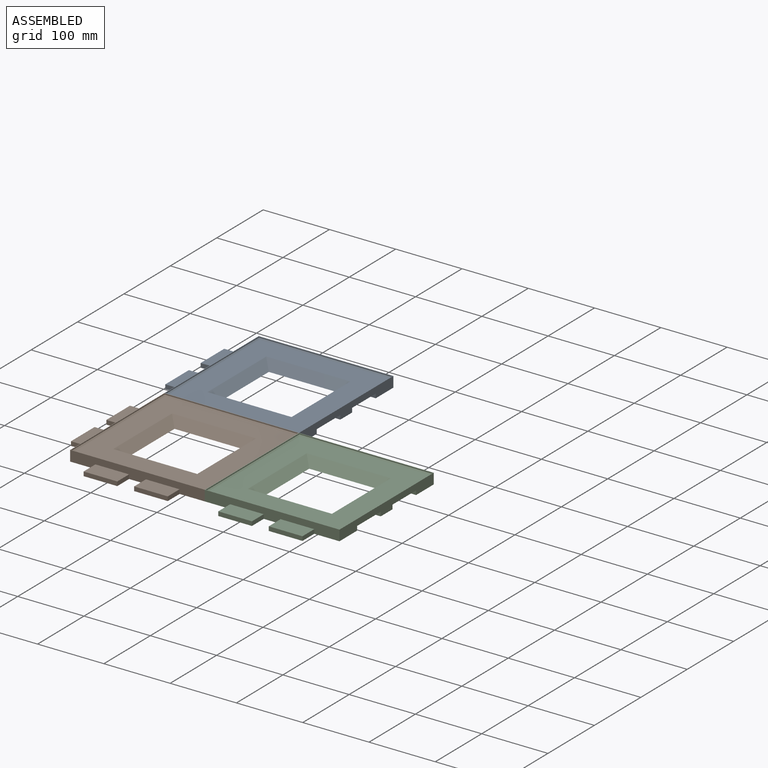
[diagram: assembled view]
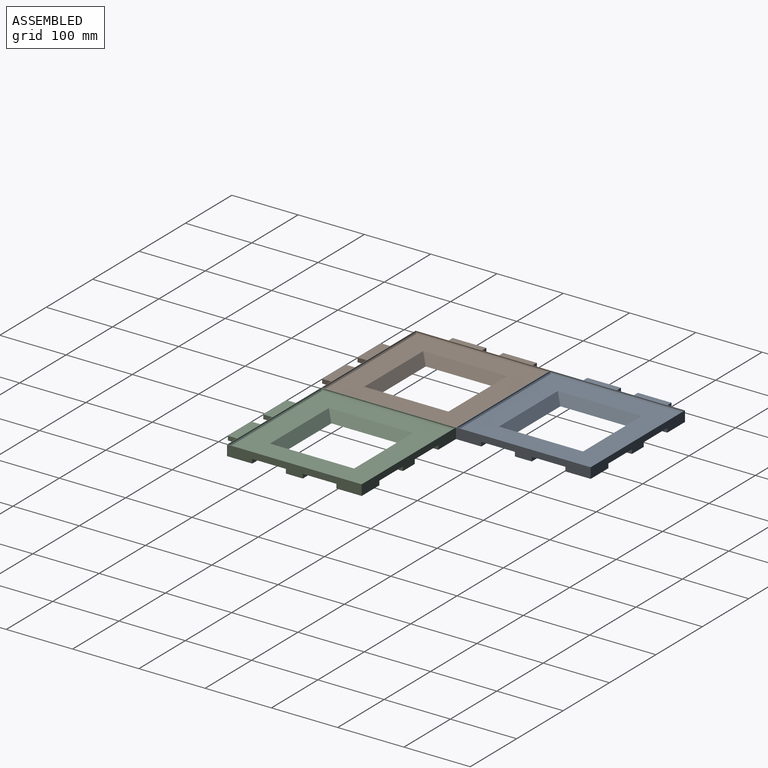
[diagram: assembled view, second angle]
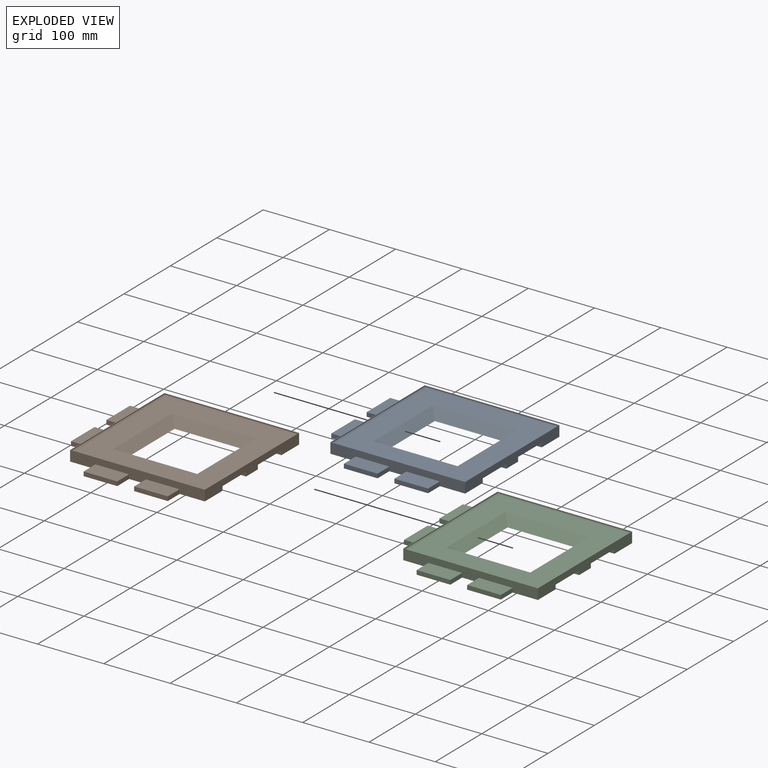
[diagram: exploded view]
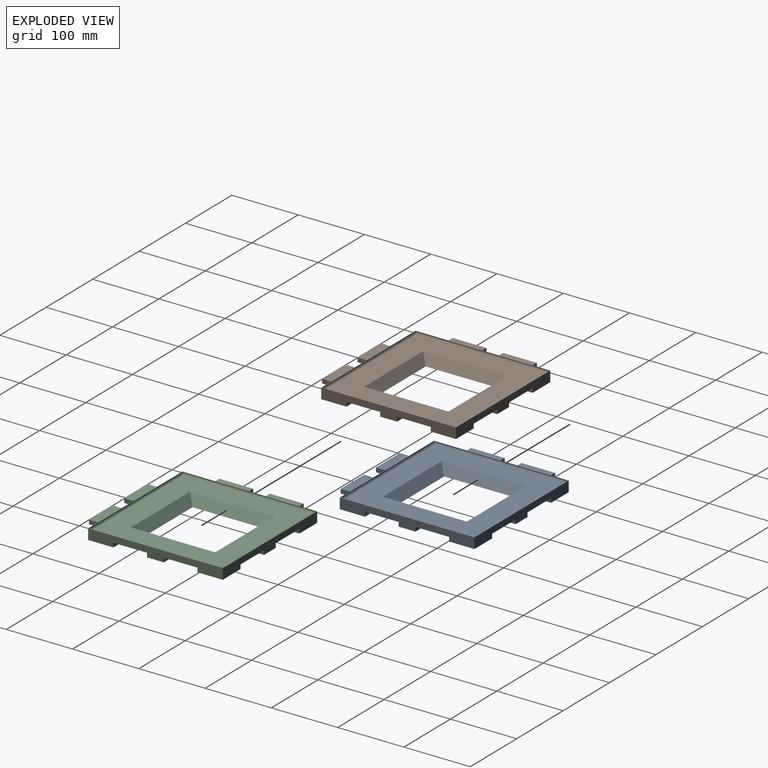
[diagram: exploded view, second angle]
ASSEMBLY  parts=3 mates=2
PART A: 51 faces, bbox 228.6x228.6x15.9 mm
  f0: plane 203.2x15.88mm, normal (0,-1,0), area 2580.6mm2, adj f1,f2,f4,f13,f14,f15,f17,f18
  f1: plane 203.2x15.88mm, normal (-1,0,0), area 2580.6mm2, adj f0,f3,f4,f5,f6,f7,f9,f10
  f2: plane 203.2x15.88mm, normal (1,0,0), area 2580.6mm2, adj f0,f3,f4,f22,f23,f24,f25,f26
  f3: plane 203.2x15.88mm, normal (0,1,0), area 2580.6mm2, adj f1,f2,f4,f30,f31,f32,f33,f34
  f4: plane 228.6x228.6mm, normal (0,0,-1), area 30967.7mm2, adj f0,f1,f2,f3,f6,f7,f8,f9
  f5: plane 50.8x25.4mm, normal (0,0,1), area 1290.3mm2, adj f1,f6,f7,f8
  f6: plane 25.4x6.35mm, normal (0,1,0), area 161.3mm2, adj f1,f4,f5,f8
  f7: plane 25.4x6.35mm, normal (0,-1,0), area 161.3mm2, adj f1,f4,f5,f8
  f8: plane 50.8x6.35mm, normal (-1,0,0), area 322.6mm2, adj f4,f5,f6,f7
  f9: plane 25.4x6.35mm, normal (0,1,0), area 161.3mm2, adj f1,f4,f11,f12
  f10: plane 25.4x6.35mm, normal (0,-1,0), area 161.3mm2, adj f1,f4,f11,f12
  f11: plane 50.8x25.4mm, normal (0,0,1), area 1290.3mm2, adj f1,f9,f10,f12
  f12: plane 50.8x6.35mm, normal (-1,0,0), area 322.6mm2, adj f4,f9,f10,f11
  f13: plane 25.4x6.35mm, normal (1,0,0), area 161.3mm2, adj f0,f4,f14,f16
  f14: plane 50.8x25.4mm, normal (0,0,1), area 1290.3mm2, adj f0,f13,f15,f16
  f15: plane 25.4x6.35mm, normal (-1,0,0), area 161.3mm2, adj f0,f4,f14,f16
  f16: plane 50.8x6.35mm, normal (0,-1,0), area 322.6mm2, adj f4,f13,f14,f15
  f17: plane 25.4x6.35mm, normal (-1,0,0), area 161.3mm2, adj f0,f4,f19,f20
  f18: plane 25.4x6.35mm, normal (1,0,0), area 161.3mm2, adj f0,f4,f19,f20
  f19: plane 50.8x25.4mm, normal (0,0,1), area 1290.3mm2, adj f0,f17,f18,f20
  f20: plane 50.8x6.35mm, normal (0,-1,0), area 322.6mm2, adj f4,f17,f18,f19
  f21: plane 50.8x6.35mm, normal (1,0,0), area 322.6mm2, adj f4,f22,f23,f24
  f22: plane 50.8x25.4mm, normal (0,0,-1), area 1290.3mm2, adj f2,f21,f23,f24
  f23: plane 25.4x6.35mm, normal (0,-1,0), area 161.3mm2, adj f2,f4,f21,f22
  f24: plane 25.4x6.35mm, normal (0,1,0), area 161.3mm2, adj f2,f4,f21,f22
  f25: plane 50.8x25.4mm, normal (0,0,-1), area 1290.3mm2, adj f2,f26,f27,f28
  f26: plane 25.4x6.35mm, normal (0,1,0), area 161.3mm2, adj f2,f4,f25,f27
  f27: plane 50.8x6.35mm, normal (1,0,0), area 322.6mm2, adj f4,f25,f26,f28
  f28: plane 25.4x6.35mm, normal (0,-1,0), area 161.3mm2, adj f2,f4,f25,f27
  f29: plane 50.8x6.35mm, normal (0,1,0), area 322.6mm2, adj f4,f30,f31,f32
  f30: plane 50.8x25.4mm, normal (0,0,-1), area 1290.3mm2, adj f3,f29,f31,f32
  f31: plane 25.4x6.35mm, normal (1,0,0), area 161.3mm2, adj f3,f4,f29,f30
  f32: plane 25.4x6.35mm, normal (-1,0,0), area 161.3mm2, adj f3,f4,f29,f30
  f33: plane 50.8x25.4mm, normal (0,0,-1), area 1290.3mm2, adj f3,f34,f35,f36
  f34: plane 25.4x6.35mm, normal (-1,0,0), area 161.3mm2, adj f3,f4,f33,f35
  f35: plane 50.8x6.35mm, normal (0,1,0), area 322.6mm2, adj f4,f33,f34,f36
  f36: plane 25.4x6.35mm, normal (1,0,0), area 161.3mm2, adj f3,f4,f33,f35
  f37: plane 201.61x1.59mm, normal (-1,0,0), area 320.1mm2, adj f38,f40,f41,f44
  f38: plane 201.61x1.59mm, normal (0,1,0), area 320.1mm2, adj f37,f39,f41,f46
  f39: plane 201.61x1.59mm, normal (1,0,0), area 320.1mm2, adj f38,f40,f41,f45
  f40: plane 201.61x1.59mm, normal (0,-1,0), area 320.1mm2, adj f37,f39,f41,f43
  f41: plane 203.2x203.2mm, normal (0,0,1), area 642.6mm2, adj f0,f1,f2,f3,f37,f38,f39,f40
  f42: plane 198.44x198.44mm, normal (0,0,1), area 23248.4mm2, adj f43,f44,f45,f46,f47,f48,f49,f50
  f43: plane 201.61x1.59mm, normal (0,-0.71,0.71), area 449.1mm2, adj f40,f42,f44,f45
  f44: plane 201.61x1.59mm, normal (-0.71,0,0.71), area 449.1mm2, adj f37,f42,f43,f46
  f45: plane 201.61x1.59mm, normal (0.71,0,0.71), area 449.1mm2, adj f39,f42,f43,f46
  f46: plane 201.61x1.59mm, normal (0,0.71,0.71), area 449.1mm2, adj f38,f42,f44,f45
  f47: plane 127x12.7mm, normal (0,0.71,0.71), area 2052.9mm2, adj f4,f42,f48,f49
  f48: plane 127x12.7mm, normal (0.71,0,0.71), area 2052.9mm2, adj f4,f42,f47,f50
  f49: plane 127x12.7mm, normal (-0.71,0,0.71), area 2052.9mm2, adj f4,f42,f47,f50
  f50: plane 127x12.7mm, normal (0,-0.71,0.71), area 2052.9mm2, adj f4,f42,f48,f49
PART B: same geometry as A
PART C: same geometry as A
PLACE A rot(axis=(0,0,1),0deg) t=(339.75,248.9,-111.9)mm
PLACE B rot(axis=(0,0,1),0deg) t=(339.75,45.7,-111.9)mm
PLACE C rot(axis=(0,0,1),0deg) t=(542.95,45.7,-111.9)mm
MATE parallel C.f1 <-> B.f2  axis (-1,0,0) through (441.35,45.7,-105.55)mm
MATE parallel B.f2 <-> C.f1  axis (1,0,0) through (441.35,45.7,-102.77)mm
